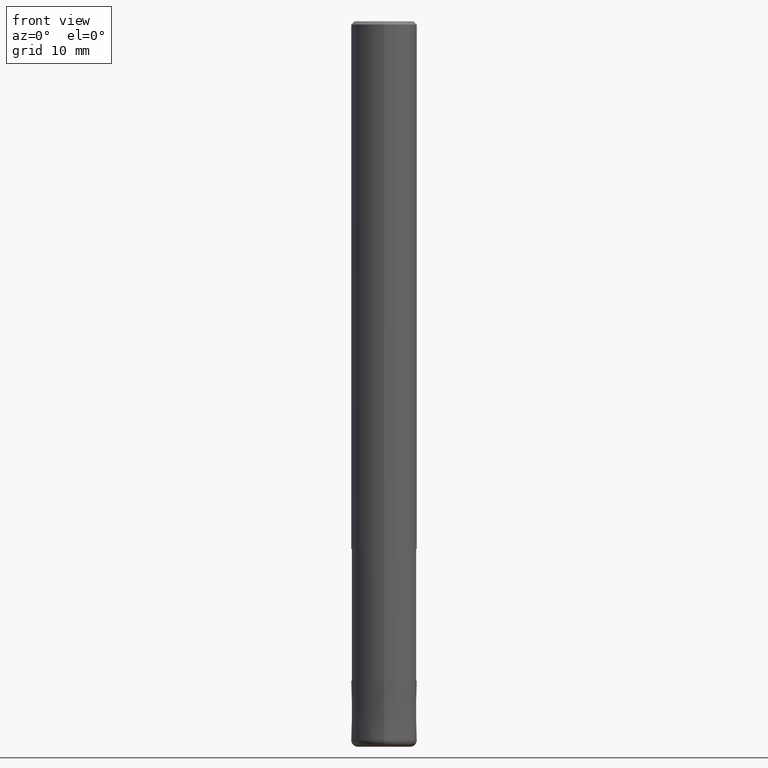
[diagram: clean part render]
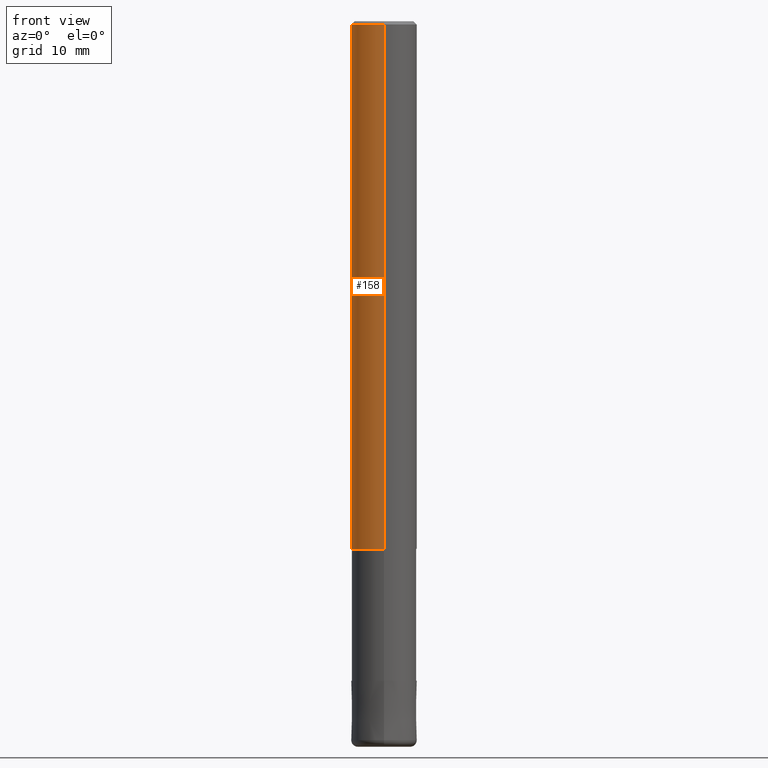
[diagram: same view with one face highlighted and labeled with its STEP entity id]
A machine part, front view. The second image highlights one B-rep face of the part: STEP entity #158.
In plain terms, the highlighted cylindrical surface (edge-blend (fillet) strip) has radius 5 mm, axis along (-0, -0, 1).
Its self-contained STEP definition (entity closure, byte-faithful):
#94=EDGE_CURVE('',#176,#194,#232,.T.);
#96=VERTEX_POINT('',#234);
#110=EDGE_CURVE('',#154,#96,#248,.T.);
#140=EDGE_CURVE('',#154,#194,#284,.T.);
#144=EDGE_CURVE('',#96,#176,#288,.T.);
#154=VERTEX_POINT('',#299);
#158=ADVANCED_FACE('',(#304),#305,.T.);
#176=VERTEX_POINT('',#324);
#194=VERTEX_POINT('',#343);
#232=LINE('',#378,#379);
#234=CARTESIAN_POINT('',(6.12303176911189E-016,-5.0,-0.5));
#248=LINE('',#399,#400);
#284=CIRCLE('',#442,5.0);
#288=CIRCLE('',#448,5.0);
#299=CARTESIAN_POINT('',(6.12303176911189E-016,-5.0,-80.0));
#304=FACE_OUTER_BOUND('',#465,.T.);
#305=CYLINDRICAL_SURFACE('',#466,5.0);
#324=CARTESIAN_POINT('',(0.0,5.0,-0.5));
#343=CARTESIAN_POINT('',(0.0,5.0,-80.0));
#378=CARTESIAN_POINT('',(-6.12303176911189E-016,5.0,-40.25));
#379=VECTOR('',#548,1.0);
#399=CARTESIAN_POINT('',(6.12303176911189E-016,-5.0,-40.25));
#400=VECTOR('',#557,1.0);
#442=AXIS2_PLACEMENT_3D('',#606,#607,#608);
#448=AXIS2_PLACEMENT_3D('',#612,#613,#614);
#465=EDGE_LOOP('',(#633,#634,#635,#636));
#466=AXIS2_PLACEMENT_3D('',#637,#638,#639);
#548=DIRECTION('',(0.0,0.0,-1.0));
#557=DIRECTION('',(-0.0,-0.0,1.0));
#606=CARTESIAN_POINT('',(0.0,0.0,-80.0));
#607=DIRECTION('',(0.0,0.0,-1.0));
#608=DIRECTION('',(0.0,1.0,0.0));
#612=CARTESIAN_POINT('',(0.0,0.0,-0.5));
#613=DIRECTION('',(0.0,0.0,-1.0));
#614=DIRECTION('',(0.0,1.0,0.0));
#633=ORIENTED_EDGE('',*,*,#94,.T.);
#634=ORIENTED_EDGE('',*,*,#140,.F.);
#635=ORIENTED_EDGE('',*,*,#110,.T.);
#636=ORIENTED_EDGE('',*,*,#144,.T.);
#637=CARTESIAN_POINT('',(0.0,0.0,-40.25));
#638=DIRECTION('',(-0.0,-0.0,1.0));
#639=DIRECTION('',(0.0,1.0,0.0));